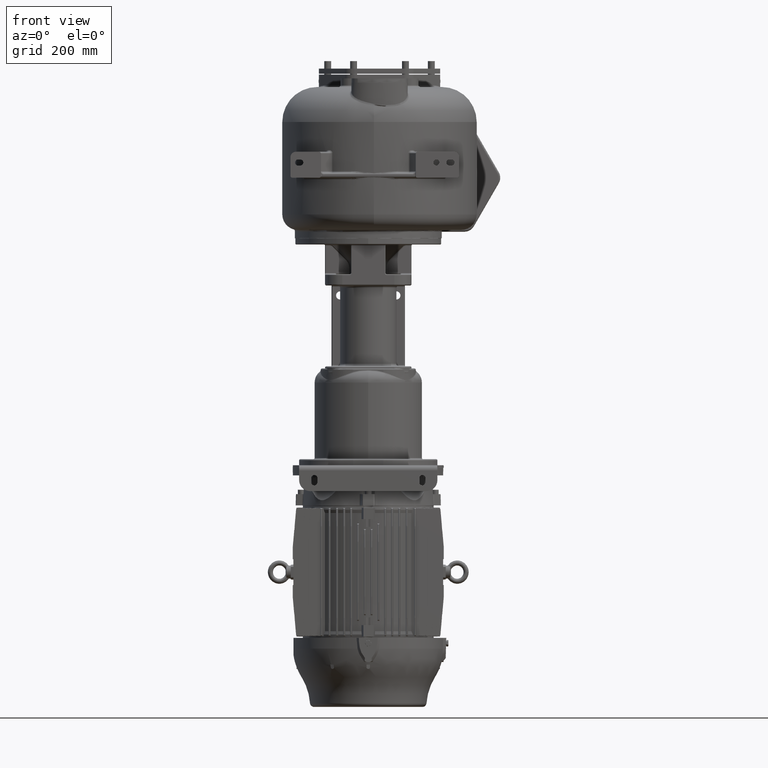
[diagram: clean part render]
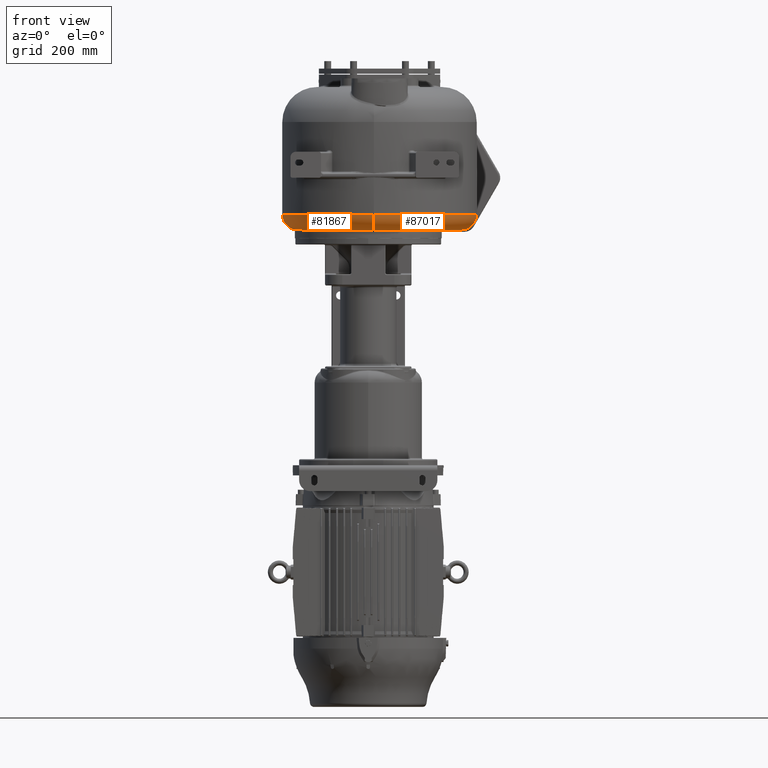
[diagram: same view with one multi-face feature highlighted, each face labeled with its STEP entity id]
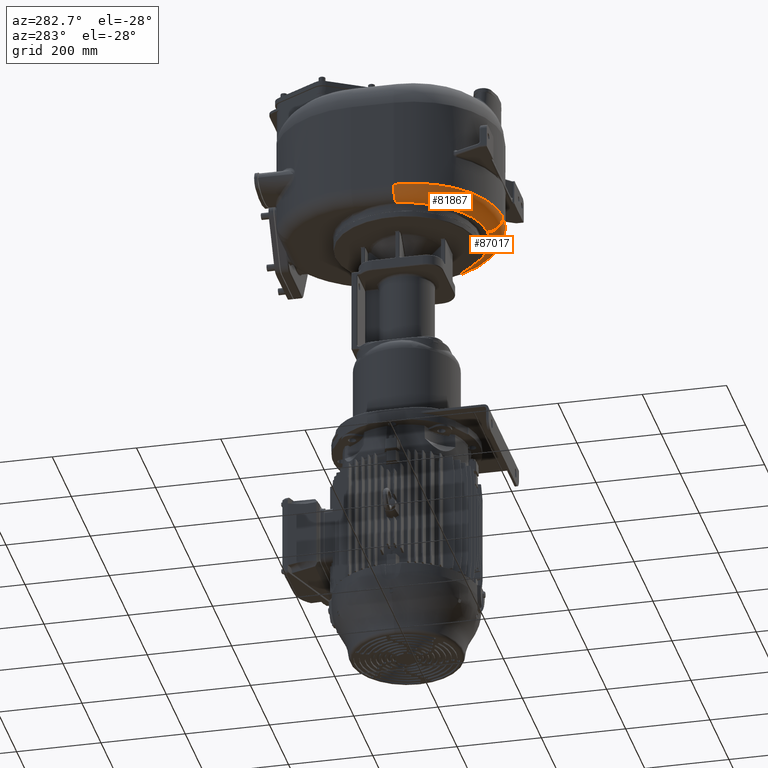
[diagram: same view with one multi-face feature highlighted, each face labeled with its STEP entity id]
A machine part, front view. The highlighted faces form ONE feature: a constant-radius fillet chain: 2 tangent blend faces with common blend radius 36 mm. The faces share edges in the B-rep.
A second angle (auxiliary view) of the same feature is appended — it is thin or edge-on in the first view.
Their STEP definitions:
[1] entity #87017 (Torus):
#21890=CARTESIAN_POINT('',(1.3E1,4.E1,-1.2E2));
#21891=DIRECTION('',(-1.E0,0.E0,0.E0));
#21892=DIRECTION('',(0.E0,0.E0,-1.E0));
#21893=AXIS2_PLACEMENT_3D('',#21890,#21891,#21892);
#22464=CARTESIAN_POINT('',(1.3E1,2.42E2,-1.2E2));
#22465=DIRECTION('',(0.E0,0.E0,-1.E0));
#22466=DIRECTION('',(1.E0,0.E0,0.E0));
#22467=AXIS2_PLACEMENT_3D('',#22464,#22465,#22466);
#27266=CARTESIAN_POINT('',(1.3E1,2.42E2,-1.56E2));
#27267=DIRECTION('',(0.E0,0.E0,-1.E0));
#27268=DIRECTION('',(1.E0,0.E0,0.E0));
#27269=AXIS2_PLACEMENT_3D('',#27266,#27267,#27268);
#27374=CARTESIAN_POINT('',(2.15E2,2.42E2,-1.2E2));
#27375=DIRECTION('',(0.E0,-1.E0,0.E0));
#27376=DIRECTION('',(0.E0,0.E0,-1.E0));
#27377=AXIS2_PLACEMENT_3D('',#27374,#27375,#27376);
#51052=CARTESIAN_POINT('',(2.51E2,2.42E2,-1.2E2));
#51054=VERTEX_POINT('',#51052);
#51142=CARTESIAN_POINT('',(2.15E2,2.42E2,-1.56E2));
#51143=VERTEX_POINT('',#51142);
#51146=CARTESIAN_POINT('',(1.3E1,4.E1,-1.56E2));
#51147=VERTEX_POINT('',#51146);
#51148=CARTESIAN_POINT('',(1.3E1,4.E0,-1.2E2));
#51149=VERTEX_POINT('',#51148);
#87005=CARTESIAN_POINT('',(1.3E1,2.42E2,-1.2E2));
#87006=DIRECTION('',(0.E0,0.E0,-1.E0));
#87007=DIRECTION('',(9.999875201581E-1,4.995951165120E-3,0.E0));
#87008=AXIS2_PLACEMENT_3D('',#87005,#87006,#87007);
#87009=TOROIDAL_SURFACE('',#87008,2.02E2,3.6E1);
#87010=ORIENTED_EDGE('',*,*,#86963,.T.);
#87011=ORIENTED_EDGE('',*,*,#81861,.T.);
#87012=ORIENTED_EDGE('',*,*,#81948,.F.);
#87014=ORIENTED_EDGE('',*,*,#87013,.F.);
#87015=EDGE_LOOP('',(#87010,#87011,#87012,#87014));
#87016=FACE_OUTER_BOUND('',#87015,.F.);
#87017=ADVANCED_FACE('',(#87016),#87009,.T.);
#21894=CIRCLE('',#21893,3.6E1);
#22468=CIRCLE('',#22467,2.38E2);
#27270=CIRCLE('',#27269,2.02E2);
#27378=CIRCLE('',#27377,3.6E1);
#81861=EDGE_CURVE('',#51147,#51149,#21894,.T.);
#81948=EDGE_CURVE('',#51054,#51149,#22468,.T.);
#86963=EDGE_CURVE('',#51143,#51147,#27270,.T.);
#87013=EDGE_CURVE('',#51143,#51054,#27378,.T.);
[2] entity #81867 (Torus):
#21832=CARTESIAN_POINT('',(-1.63E2,2.16E2,-1.2E2));
#21833=DIRECTION('',(0.E0,1.E0,0.E0));
#21834=DIRECTION('',(-2.628422055211E-1,0.E0,-9.648388336903E-1));
#21835=AXIS2_PLACEMENT_3D('',#21832,#21833,#21834);
#21847=CARTESIAN_POINT('',(-1.298008796822E2,1.131219318900E2,
-1.559999923027E2));
#21848=CARTESIAN_POINT('',(-1.304413593023E2,1.138545513745E2,
-1.559999914096E2));
#21849=CARTESIAN_POINT('',(-1.317087727713E2,1.153301828413E2,
-1.559993120328E2));
#21850=CARTESIAN_POINT('',(-1.335705724291E2,1.175702754198E2,
-1.559961996366E2));
#21851=CARTESIAN_POINT('',(-1.353924176117E2,1.198388312651E2,
-1.559910533923E2));
#21852=CARTESIAN_POINT('',(-1.371745799978E2,1.221352384709E2,
-1.559838889199E2));
#21853=CARTESIAN_POINT('',(-1.389170294392E2,1.244595905462E2,
-1.559747353768E2));
#21854=CARTESIAN_POINT('',(-1.406197786600E2,1.268118162402E2,
-1.559636200313E2));
#21855=CARTESIAN_POINT('',(-1.422829674642E2,1.291919759069E2,
-1.559505654556E2));
#21856=CARTESIAN_POINT('',(-1.439066770063E2,1.316001505384E2,
-1.559355929572E2));
#21857=CARTESIAN_POINT('',(-1.454910837412E2,1.340366921203E2,
-1.559187207969E2));
#21858=CARTESIAN_POINT('',(-1.470352640069E2,1.365003194414E2,
-1.558999791482E2));
#21859=CARTESIAN_POINT('',(-1.485380100738E2,1.389891513895E2,
-1.558794074961E2));
#21860=CARTESIAN_POINT('',(-1.499982625196E2,1.415013509845E2,
-1.558570507673E2));
#21861=CARTESIAN_POINT('',(-1.514159591409E2,1.440367135001E2,
-1.558329434181E2));
#21862=CARTESIAN_POINT('',(-1.527910339219E2,1.465951203023E2,
-1.558071203331E2));
#21863=CARTESIAN_POINT('',(-1.541233707536E2,1.491764559844E2,
-1.557796192294E2));
#21864=CARTESIAN_POINT('',(-1.554128505744E2,1.517804495858E2,
-1.557504694011E2));
#21865=CARTESIAN_POINT('',(-1.566594072562E2,1.544070120865E2,
-1.557196975272E2));
#21866=CARTESIAN_POINT('',(-1.578625997282E2,1.570553442047E2,
-1.556873400573E2));
#21867=CARTESIAN_POINT('',(-1.590215880559E2,1.597236796160E2,
-1.556534487102E2));
#21868=CARTESIAN_POINT('',(-1.601356395388E2,1.624102966289E2,
-1.556180797178E2));
#21869=CARTESIAN_POINT('',(-1.612043574554E2,1.651141453864E2,
-1.555812850071E2));
#21870=CARTESIAN_POINT('',(-1.622274749476E2,1.678344843720E2,
-1.555431163192E2));
#21871=CARTESIAN_POINT('',(-1.632047015425E2,1.705704859383E2,
-1.555036299191E2));
#21872=CARTESIAN_POINT('',(-1.641359928762E2,1.733220969297E2,
-1.554628775688E2));
#21873=CARTESIAN_POINT('',(-1.650213703502E2,1.760893489811E2,
-1.554208969281E2));
#21874=CARTESIAN_POINT('',(-1.658607498317E2,1.788719785249E2,
-1.553777239336E2));
#21875=CARTESIAN_POINT('',(-1.666537303446E2,1.816687228286E2,
-1.553334139497E2));
#21876=CARTESIAN_POINT('',(-1.673999926813E2,1.844784657875E2,
-1.552880228669E2));
#21877=CARTESIAN_POINT('',(-1.680992153803E2,1.872999779899E2,
-1.552416119237E2));
#21878=CARTESIAN_POINT('',(-1.687511838532E2,1.901323463302E2,
-1.551942408181E2));
#21879=CARTESIAN_POINT('',(-1.693557684783E2,1.929750260389E2,
-1.551459663529E2));
#21880=CARTESIAN_POINT('',(-1.699128070405E2,1.958273932808E2,
-1.550968508154E2));
#21881=CARTESIAN_POINT('',(-1.704221478626E2,1.986888703177E2,
-1.550469571020E2));
#21882=CARTESIAN_POINT('',(-1.708836882328E2,2.015586175052E2,
-1.549963322467E2));
#21883=CARTESIAN_POINT('',(-1.712973073081E2,2.044357143993E2,
-1.549450298544E2));
#21884=CARTESIAN_POINT('',(-1.716628925015E2,2.073192606709E2,
-1.548931073840E2));
#21885=CARTESIAN_POINT('',(-1.719803376914E2,2.102083482196E2,
-1.548406250099E2));
#21886=CARTESIAN_POINT('',(-1.722495261284E2,2.131020779668E2,
-1.547876552957E2));
#21887=CARTESIAN_POINT('',(-1.723967763916E2,2.150337051347E2,
-1.547520504152E2));
#21888=CARTESIAN_POINT('',(-1.724623192819E2,2.16E2,-1.547341975839E2));
#21890=CARTESIAN_POINT('',(1.3E1,4.E1,-1.2E2));
#21891=DIRECTION('',(-1.E0,0.E0,0.E0));
#21892=DIRECTION('',(0.E0,0.E0,-1.E0));
#21893=AXIS2_PLACEMENT_3D('',#21890,#21891,#21892);
#21899=CARTESIAN_POINT('',(1.3E1,2.16E2,-1.2E2));
#21900=DIRECTION('',(0.E0,0.E0,-1.E0));
#21901=DIRECTION('',(0.E0,-1.E0,0.E0));
#21902=AXIS2_PLACEMENT_3D('',#21899,#21900,#21901);
#27261=CARTESIAN_POINT('',(1.3E1,2.16E2,-1.56E2));
#27262=DIRECTION('',(0.E0,0.E0,-1.E0));
#27263=DIRECTION('',(0.E0,-1.E0,0.E0));
#27264=AXIS2_PLACEMENT_3D('',#27261,#27262,#27263);
#51106=CARTESIAN_POINT('',(-1.99E2,2.16E2,-1.2E2));
#51108=VERTEX_POINT('',#51106);
#51146=CARTESIAN_POINT('',(1.3E1,4.E1,-1.56E2));
#51147=VERTEX_POINT('',#51146);
#51148=CARTESIAN_POINT('',(1.3E1,4.E0,-1.2E2));
#51149=VERTEX_POINT('',#51148);
#51492=VERTEX_POINT('',#21847);
#51493=VERTEX_POINT('',#21888);
#81852=CARTESIAN_POINT('',(1.3E1,2.16E2,-1.2E2));
#81853=DIRECTION('',(0.E0,0.E0,-1.E0));
#81854=DIRECTION('',(5.608656083237E-3,-9.999842713648E-1,0.E0));
#81855=AXIS2_PLACEMENT_3D('',#81852,#81853,#81854);
#81856=TOROIDAL_SURFACE('',#81855,1.76E2,3.6E1);
#81857=ORIENTED_EDGE('',*,*,#81842,.T.);
#81858=ORIENTED_EDGE('',*,*,#81766,.T.);
#81860=ORIENTED_EDGE('',*,*,#81859,.F.);
#81862=ORIENTED_EDGE('',*,*,#81861,.F.);
#81864=ORIENTED_EDGE('',*,*,#81863,.T.);
#81865=EDGE_LOOP('',(#81857,#81858,#81860,#81862,#81864));
#81866=FACE_OUTER_BOUND('',#81865,.F.);
#81867=ADVANCED_FACE('',(#81866),#81856,.T.);
#21836=CIRCLE('',#21835,3.6E1);
#21889=B_SPLINE_CURVE_WITH_KNOTS('',3,(#21847,#21848,#21849,#21850,#21851,
#21852,#21853,#21854,#21855,#21856,#21857,#21858,#21859,#21860,#21861,#21862,
#21863,#21864,#21865,#21866,#21867,#21868,#21869,#21870,#21871,#21872,#21873,
#21874,#21875,#21876,#21877,#21878,#21879,#21880,#21881,#21882,#21883,#21884,
#21885,#21886,#21887,#21888),.UNSPECIFIED.,.F.,.F.,(4,1,1,1,1,1,1,1,1,1,1,1,1,1,
1,1,1,1,1,1,1,1,1,1,1,1,1,1,1,1,1,1,1,1,1,1,1,1,1,4),(0.E0,2.564102564103E-2,
5.128205128205E-2,7.692307692308E-2,1.025641025641E-1,1.282051282051E-1,
1.538461538462E-1,1.794871794872E-1,2.051282051282E-1,2.307692307692E-1,
2.564102564103E-1,2.820512820513E-1,3.076923076923E-1,3.333333333333E-1,
3.589743589744E-1,3.846153846154E-1,4.102564102564E-1,4.358974358974E-1,
4.615384615385E-1,4.871794871795E-1,5.128205128205E-1,5.384615384615E-1,
5.641025641026E-1,5.897435897436E-1,6.153846153846E-1,6.410256410256E-1,
6.666666666667E-1,6.923076923077E-1,7.179487179487E-1,7.435897435897E-1,
7.692307692308E-1,7.948717948718E-1,8.205128205128E-1,8.461538461538E-1,
8.717948717949E-1,8.974358974359E-1,9.230769230769E-1,9.487179487179E-1,
9.743589743590E-1,1.E0),.UNSPECIFIED.);
#21894=CIRCLE('',#21893,3.6E1);
#21903=CIRCLE('',#21902,2.12E2);
#27265=CIRCLE('',#27264,1.76E2);
#81766=EDGE_CURVE('',#51493,#51108,#21836,.T.);
#81842=EDGE_CURVE('',#51492,#51493,#21889,.T.);
#81859=EDGE_CURVE('',#51149,#51108,#21903,.T.);
#81861=EDGE_CURVE('',#51147,#51149,#21894,.T.);
#81863=EDGE_CURVE('',#51147,#51492,#27265,.T.);